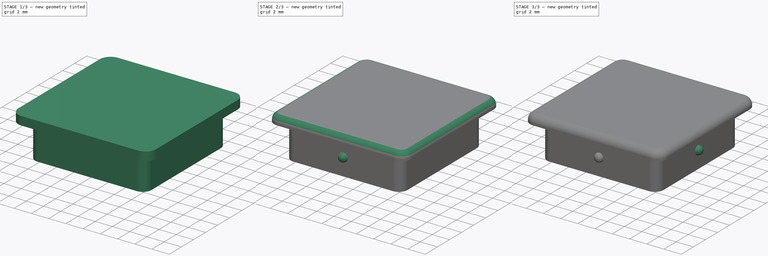
[diagram: build sequence overview — one tinted view per stage of 3, left to right]
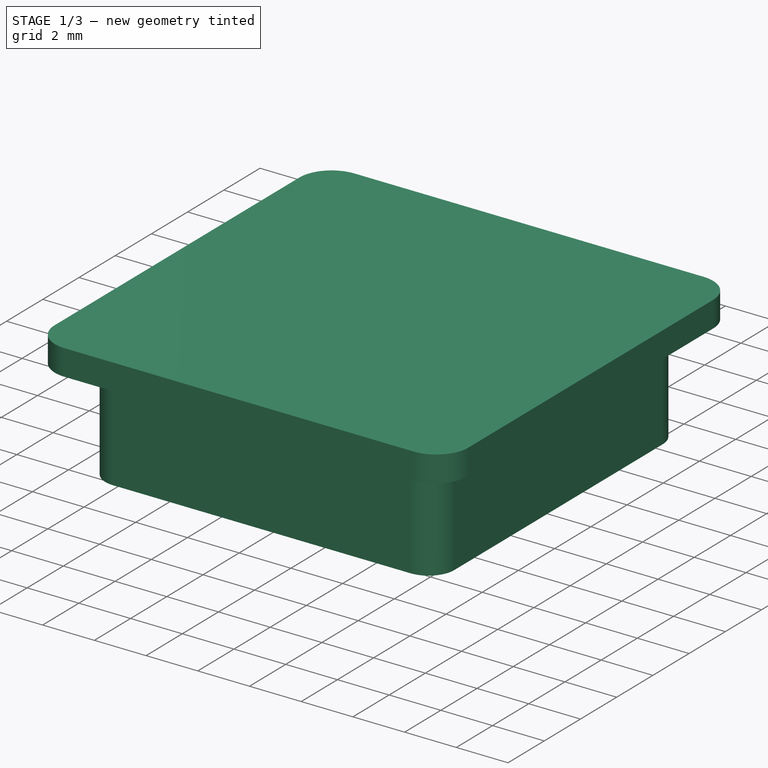
[diagram: stage 1 of 3 — iso view after this stage's code; geometry added in this stage tinted green]
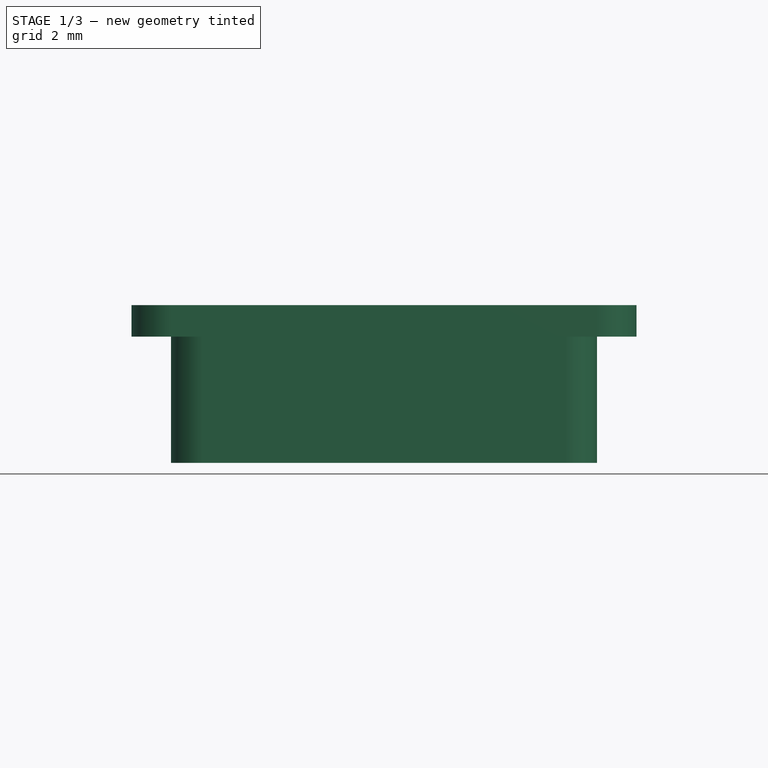
[diagram: stage 1 of 3 — front view after this stage's code; geometry added in this stage tinted green]
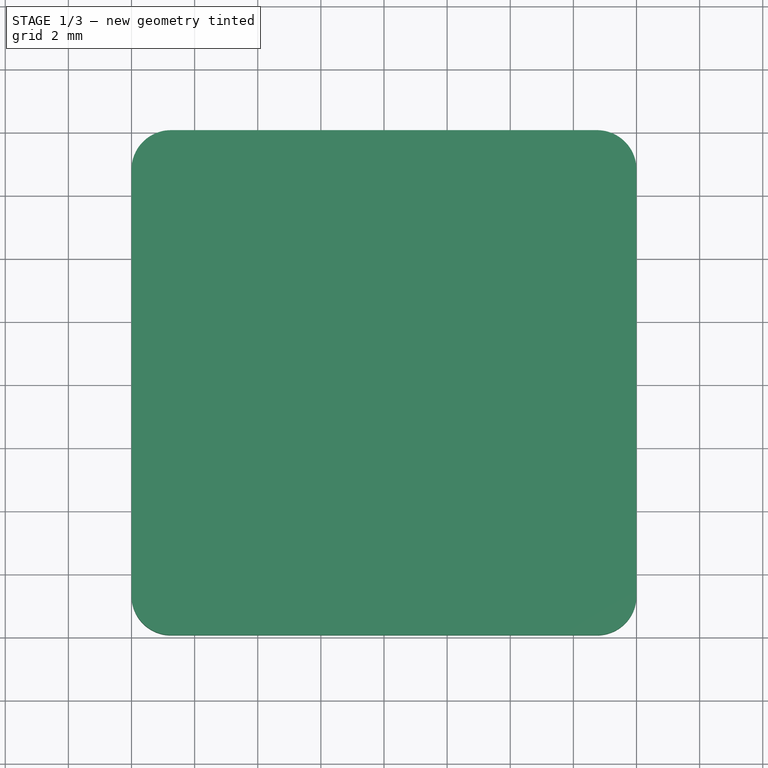
[diagram: stage 1 of 3 — top view after this stage's code; geometry added in this stage tinted green]
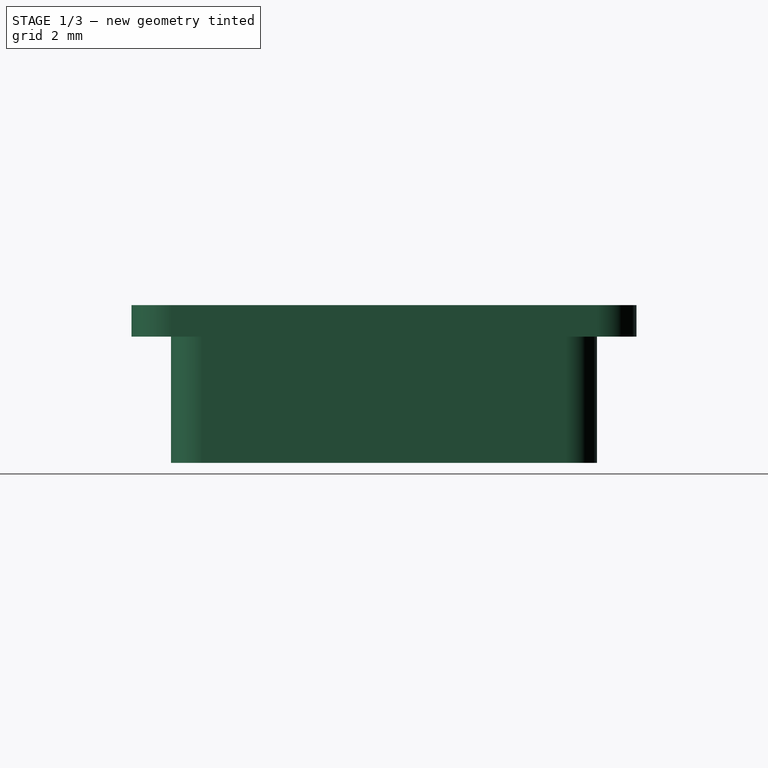
[diagram: stage 1 of 3 — right view after this stage's code; geometry added in this stage tinted green]
FCSTD DOCUMENT  (FreeCAD 1.0R39109 (Git))
Label: mechanical-keyboard-mount-hole-plug
License: All rights reserved
LicenseURL: https://en.wikipedia.org/wiki/All_rights_reserved
objects: Sketcher::SketchObject×4, PartDesign::Pad×2, App::VarSet×1, PartDesign::Fillet×1, PartDesign::AdditiveSphere×1, PartDesign::PolarPattern×1, PartDesign::Pocket×1, PartDesign::Body×1
note: 26 computed .brp shape members not serialized (recipe doc carries the construction recipe); baked Part::Feature solids carry a one-line shape summary decoded from their .brp

FEATURE [App::VarSet] VarSet
  Base_CapCornerRadius = 1.25
  Base_CapHeight = 1
  Base_FilletRadius = 0.8
  Base_MaterialThickness = 1.5
  Base_MountHoleCornerRadius = 1
  Base_Overlap = 2
  Base_PegHeight = 4
  Base_PimpleRadius = 0.5
  Base_Tolerance = 0.5
  MountHoleWidth = 14
FEATURE [Sketcher::SketchObject] Sketch
  ArcFitTolerance = 1e-06
  AttachmentSupport = -> [XY_Plane]
  FullyConstrained = true
  MakeInternals = false
  MapMode = 5
  expr: Constraints[10] = VarSet.MountHoleWidth - VarSet.Base_Tolerance
  expr: Constraints[33] = VarSet.Base_MountHoleCornerRadius
  sketch-geometry (15):
    g0: LineSegment [constr] StartX=-6.75 StartY=6.75 StartZ=0 EndX=-6.75 EndY=-6.75 EndZ=0
    g1: LineSegment [constr] StartX=-6.75 StartY=-6.75 StartZ=0 EndX=6.75 EndY=-6.75 EndZ=0
    g2: LineSegment [constr] StartX=6.75 StartY=-6.75 StartZ=0 EndX=6.75 EndY=6.75 EndZ=0
    g3: LineSegment [constr] StartX=6.75 StartY=6.75 StartZ=0 EndX=-6.75 EndY=6.75 EndZ=0
    g4: GeomPoint [constr] X=0 Y=0 Z=0
    g5: LineSegment StartX=5.75 StartY=6.75 StartZ=0 EndX=-5.75 EndY=6.75 EndZ=0
    g6: LineSegment StartX=-6.75 StartY=5.75 StartZ=0 EndX=-6.75 EndY=-5.75 EndZ=0
    g7: LineSegment StartX=-5.75 StartY=-6.75 StartZ=0 EndX=5.75 EndY=-6.75 EndZ=0
    g8: LineSegment StartX=6.75 StartY=-5.75 StartZ=0 EndX=6.75 EndY=5.75 EndZ=0
    g9: ArcOfCircle CenterX=5.75 CenterY=5.75 CenterZ=0 NormalX=0 NormalY=0 NormalZ=1 AngleXU=0 Radius=1 StartAngle=6.31e-14 EndAngle=1.5708
    g10: ArcOfCircle CenterX=-5.75 CenterY=5.75 CenterZ=0 NormalX=0 NormalY=0 NormalZ=1 AngleXU=0 Radius=1 StartAngle=1.5708 EndAngle=3.14159
    g11: ArcOfCircle CenterX=-5.75 CenterY=-5.75 CenterZ=0 NormalX=0 NormalY=0 NormalZ=1 AngleXU=0 Radius=1 StartAngle=3.14159 EndAngle=4.71239
    g12: ArcOfCircle CenterX=5.75 CenterY=-5.75 CenterZ=0 NormalX=0 NormalY=0 NormalZ=1 AngleXU=0 Radius=1 StartAngle=4.71239 EndAngle=6.28319
    g13: GeomPoint [constr] X=6.75 Y=6.75 Z=0
    g14: GeomPoint [constr] X=-6.75 Y=-6.75 Z=0
  constraints (34):
    c: Coincident(g0,g1)
    c: Coincident(g1,g2)
    c: Coincident(g2,g3)
    c: Coincident(g3,g0)
    c: Vertical(g0)
    c: Vertical(g2)
    c: Horizontal(g1)
    c: Horizontal(g3)
    c: Symmetric(g2,g0,g4)
    c: Coincident(g4,g-1)
    c: DistanceX(g3,g3) = 13.5
    c: Equal(g2,g3)
    c: Tangent(g5,g9) = -1.5708
    c: Tangent(g5,g10) = -1.5708
    c: Tangent(g6,g10) = -1.5708
    c: Tangent(g6,g11) = -1.5708
    c: Tangent(g7,g11) = -1.5708
    c: Tangent(g7,g12) = -1.5708
    c: Tangent(g8,g12) = -1.5708
    c: Tangent(g8,g9) = -1.5708
    c: Horizontal(g5)
    c: Horizontal(g7)
    c: Vertical(g6)
    c: Vertical(g8)
    c: Equal(g9,g10)
    c: Equal(g10,g11)
    c: Equal(g11,g12)
    c: PointOnObject(g13,g5)
    c: PointOnObject(g13,g8)
    c: PointOnObject(g14,g6)
    c: PointOnObject(g14,g7)
    c: Coincident(g13,g2)
    c: Coincident(g14,g0)
    c: Radius(g10) = 1
FEATURE [PartDesign::Pad] Pad  label="Peg Pad"
  Direction = (0,0,1)
  Length = 4
  Length2 = 10
  Profile = -> Sketch
  ReferenceAxis = -> Sketch [N_Axis]
  Refine = true
  Suppressed = false
  Type = 0
  expr: Length = VarSet.Base_PegHeight
FEATURE [Sketcher::SketchObject] Sketch001
  ArcFitTolerance = 1e-06
  AttachmentSupport = -> [Pad]
  FullyConstrained = true
  MakeInternals = false
  MapMode = 5
  Placement = pos=(0,0,4) rot=(0,0,1;0rad)
  expr: Constraints[10] = VarSet.MountHoleWidth + VarSet.Base_Overlap
  expr: Constraints[33] = VarSet.Base_CapCornerRadius
  sketch-geometry (15):
    g0: LineSegment [constr] StartX=-8 StartY=8 StartZ=0 EndX=-8 EndY=-8 EndZ=0
    g1: LineSegment [constr] StartX=-8 StartY=-8 StartZ=0 EndX=8 EndY=-8 EndZ=0
    g2: LineSegment [constr] StartX=8 StartY=-8 StartZ=0 EndX=8 EndY=8 EndZ=0
    g3: LineSegment [constr] StartX=8 StartY=8 StartZ=0 EndX=-8 EndY=8 EndZ=0
    g4: GeomPoint [constr] X=0 Y=0 Z=0
    g5: LineSegment StartX=6.75 StartY=8 StartZ=0 EndX=-6.75 EndY=8 EndZ=0
    g6: LineSegment StartX=-8 StartY=6.75 StartZ=0 EndX=-8 EndY=-6.75 EndZ=0
    g7: LineSegment StartX=-6.75 StartY=-8 StartZ=0 EndX=6.75 EndY=-8 EndZ=0
    g8: LineSegment StartX=8 StartY=-6.75 StartZ=0 EndX=8 EndY=6.75 EndZ=0
    g9: ArcOfCircle CenterX=6.75 CenterY=6.75 CenterZ=0 NormalX=0 NormalY=0 NormalZ=1 AngleXU=0 Radius=1.25 StartAngle=0 EndAngle=1.5708
    g10: ArcOfCircle CenterX=-6.75 CenterY=6.75 CenterZ=0 NormalX=0 NormalY=0 NormalZ=1 AngleXU=0 Radius=1.25 StartAngle=1.5708 EndAngle=3.14159
    g11: ArcOfCircle CenterX=-6.75 CenterY=-6.75 CenterZ=0 NormalX=0 NormalY=0 NormalZ=1 AngleXU=0 Radius=1.25 StartAngle=3.14159 EndAngle=4.71239
    g12: ArcOfCircle CenterX=6.75 CenterY=-6.75 CenterZ=0 NormalX=0 NormalY=0 NormalZ=1 AngleXU=0 Radius=1.25 StartAngle=4.71239 EndAngle=6.28319
    g13: GeomPoint [constr] X=8 Y=8 Z=0
    g14: GeomPoint [constr] X=-8 Y=-8 Z=0
  constraints (34):
    c: Coincident(g0,g1)
    c: Coincident(g1,g2)
    c: Coincident(g2,g3)
    c: Coincident(g3,g0)
    c: Vertical(g0)
    c: Vertical(g2)
    c: Horizontal(g1)
    c: Horizontal(g3)
    c: Symmetric(g2,g0,g4)
    c: Coincident(g4,g-1)
    c: DistanceX(g3,g3) = 16
    c: Equal(g3,g2)
    c: Tangent(g5,g9) = -1.5708
    c: Tangent(g5,g10) = -1.5708
    c: Tangent(g6,g10) = -1.5708
    c: Tangent(g6,g11) = -1.5708
    c: Tangent(g7,g11) = -1.5708
    c: Tangent(g7,g12) = -1.5708
    c: Tangent(g8,g12) = -1.5708
    c: Tangent(g8,g9) = -1.5708
    c: Horizontal(g5)
    c: Horizontal(g7)
    c: Vertical(g6)
    c: Vertical(g8)
    c: Equal(g9,g10)
    c: Equal(g10,g11)
    c: Equal(g11,g12)
    c: PointOnObject(g13,g5)
    c: PointOnObject(g13,g8)
    c: PointOnObject(g14,g6)
    c: PointOnObject(g14,g7)
    c: Coincident(g13,g2)
    c: Coincident(g14,g0)
    c: Radius(g11) = 1.25
FEATURE [PartDesign::Pad] Pad001  label="CapPad"
  BaseFeature = -> Pad
  Direction = (0,0,1)
  Length = 1
  Length2 = 10
  Profile = -> Sketch001
  ReferenceAxis = -> Sketch001 [N_Axis]
  Refine = true
  Suppressed = false
  Type = 0
  expr: Length = VarSet.Base_CapHeight
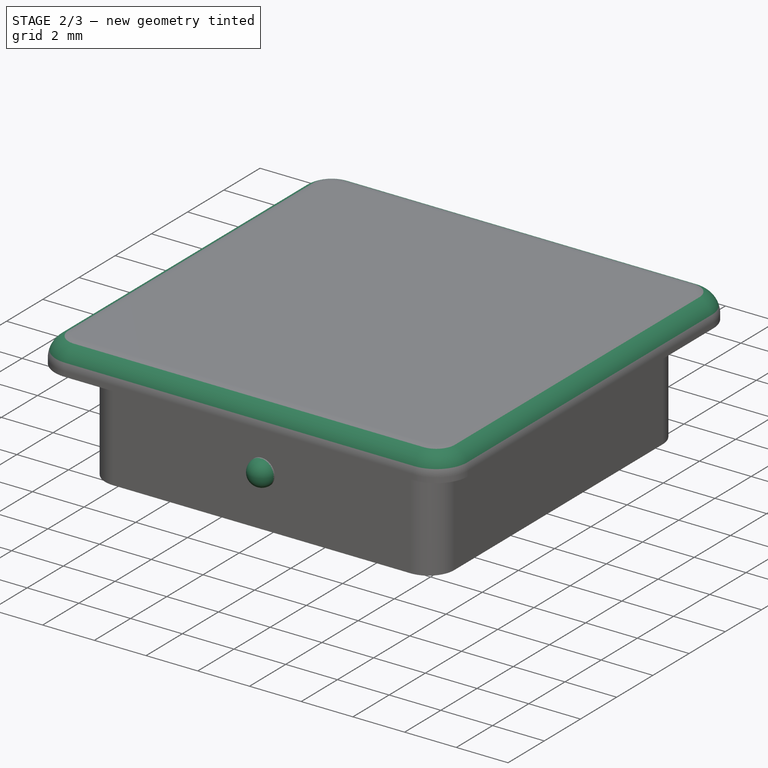
[diagram: stage 2 of 3 — iso view after this stage's code; geometry added in this stage tinted green]
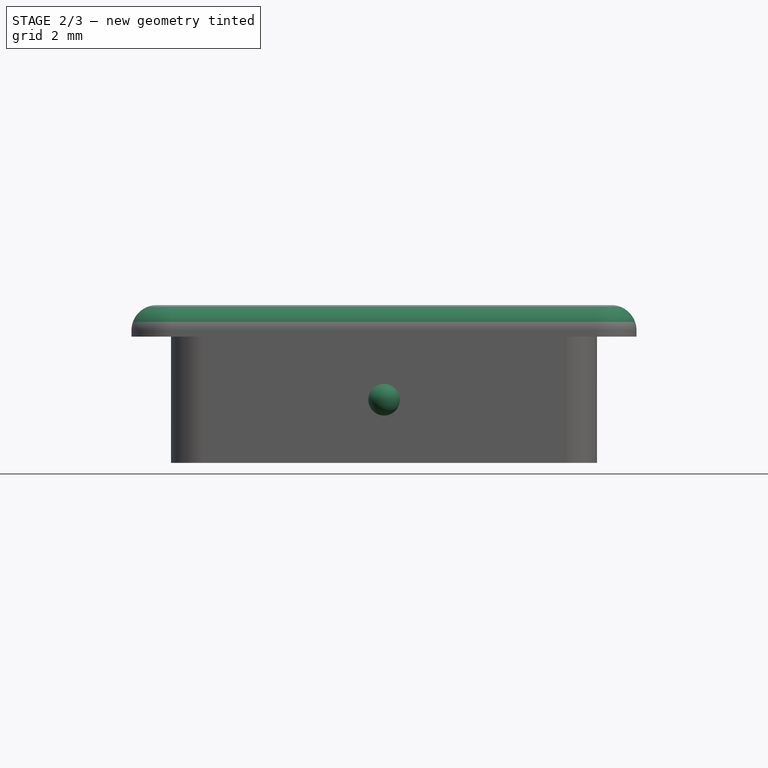
[diagram: stage 2 of 3 — front view after this stage's code; geometry added in this stage tinted green]
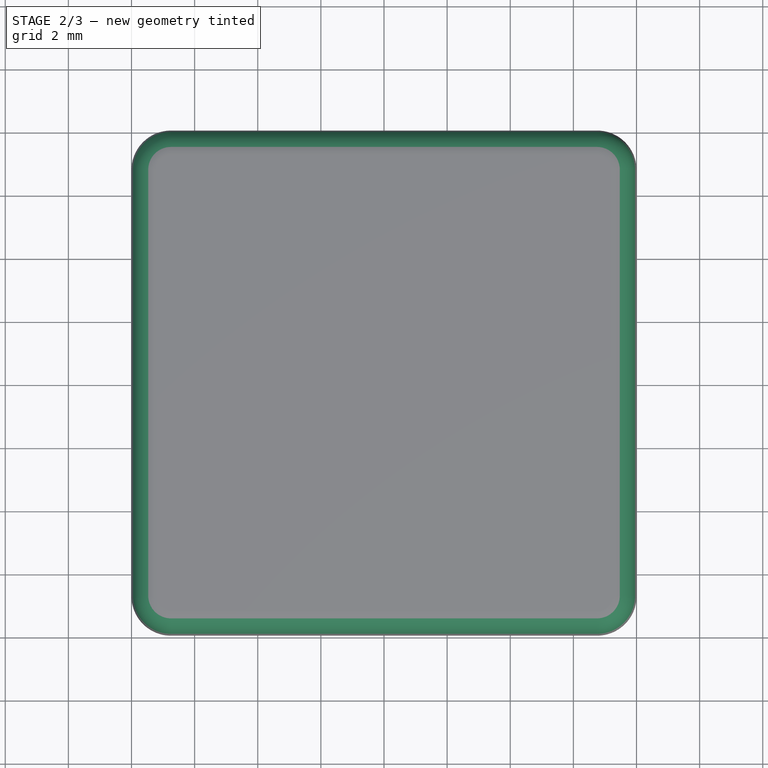
[diagram: stage 2 of 3 — top view after this stage's code; geometry added in this stage tinted green]
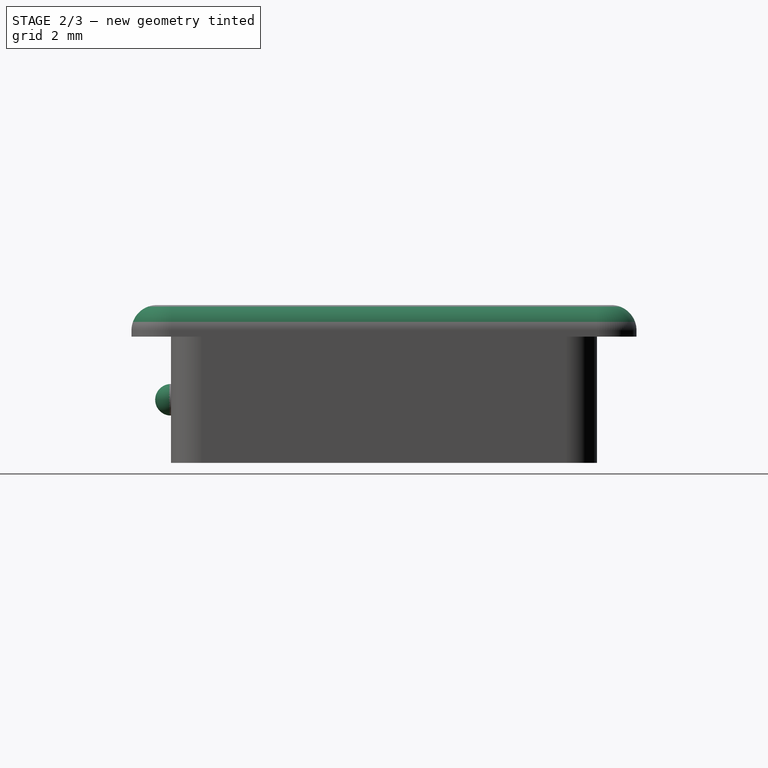
[diagram: stage 2 of 3 — right view after this stage's code; geometry added in this stage tinted green]
FEATURE [PartDesign::Fillet] Fillet
  Base = -> Pad001 [Edge48,Edge47,Edge43,Edge39,Edge35,Edge37,Edge41,Edge45]
  BaseFeature = -> Pad001
  Radius = 0.8
  Refine = true
  SupportTransform = false
  Suppressed = false
  UseAllEdges = false
  expr: Radius = VarSet.Base_FilletRadius
FEATURE [Sketcher::SketchObject] Sketch003
  ArcFitTolerance = 1e-06
  AttachmentSupport = -> [Fillet]
  ExternalGeometry = -> [Fillet]
  FullyConstrained = true
  MakeInternals = false
  MapMode = 5
  Placement = pos=(0,-6.75,0) rot=(1,0,0;1.5708rad)
  expr: Constraints[1] = VarSet.Base_MaterialThickness + VarSet.Base_Tolerance
  sketch-geometry (1):
    g0: GeomPoint X=0 Y=2 Z=0
  constraints (2):
    c: PointOnObject(g0,g-2)
    c: Distance(g0,g-3) = 2
FEATURE [PartDesign::AdditiveSphere] Sphere
  Angle1 = -90
  Angle2 = 90
  Angle3 = 360
  AttacherType = Attacher::AttachEngine3D
  AttachmentSupport = -> [Sketch003]
  BaseFeature = -> Fillet
  MapMode = 1
  Placement = pos=(0,-6.75,2) rot=(0,0,1;0rad)
  Radius = 0.5
  Refine = true
  Suppressed = false
  expr: Radius = VarSet.Base_PimpleRadius
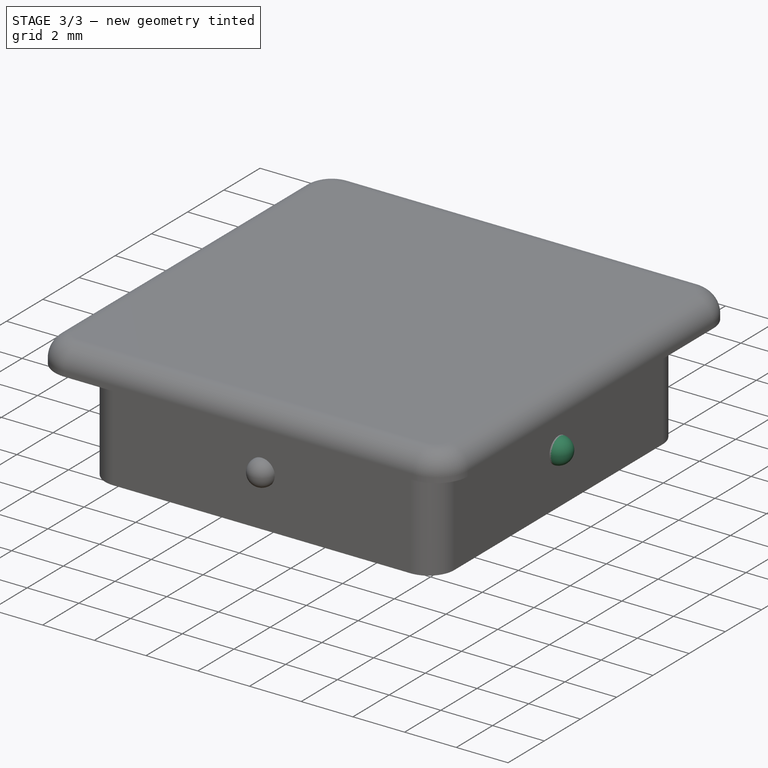
[diagram: stage 3 of 3 — iso view after this stage's code; geometry added in this stage tinted green]
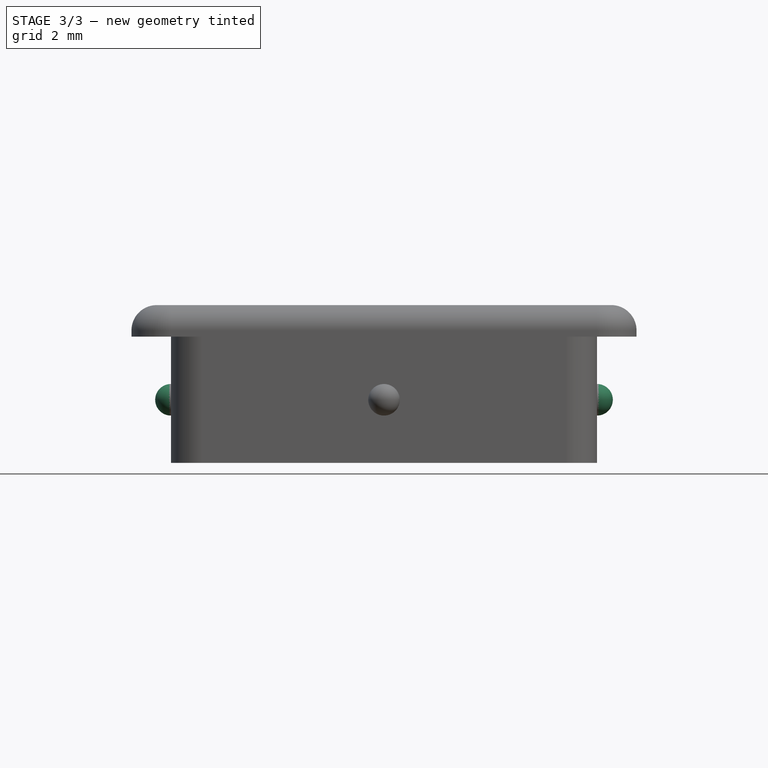
[diagram: stage 3 of 3 — front view after this stage's code; geometry added in this stage tinted green]
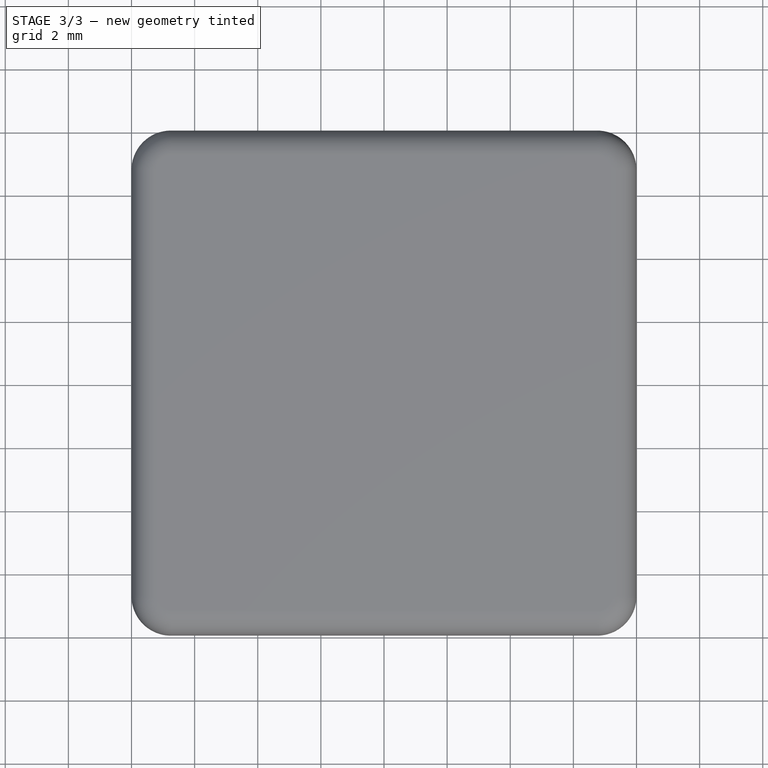
[diagram: stage 3 of 3 — top view after this stage's code; geometry added in this stage tinted green]
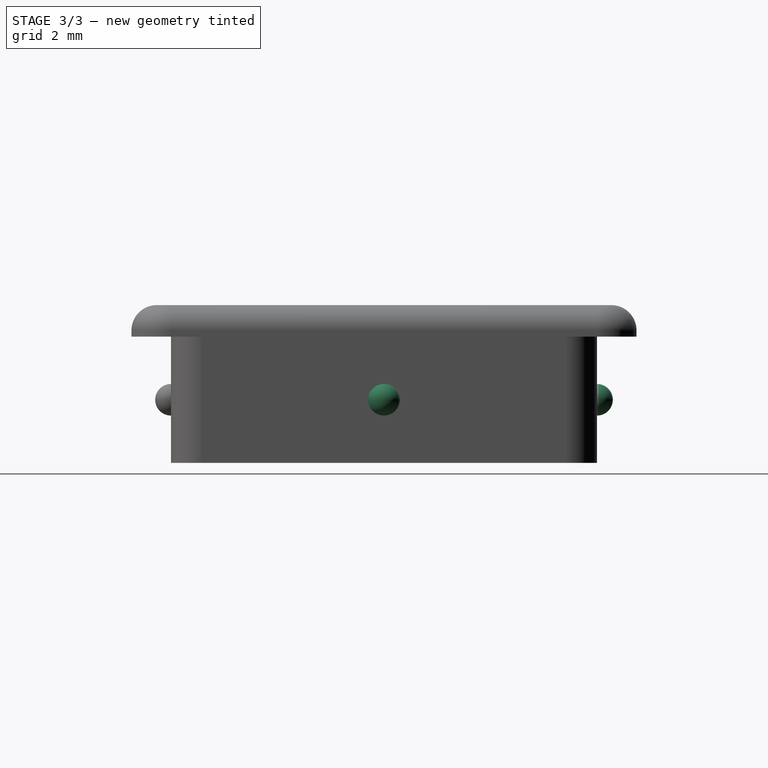
[diagram: stage 3 of 3 — right view after this stage's code; geometry added in this stage tinted green]
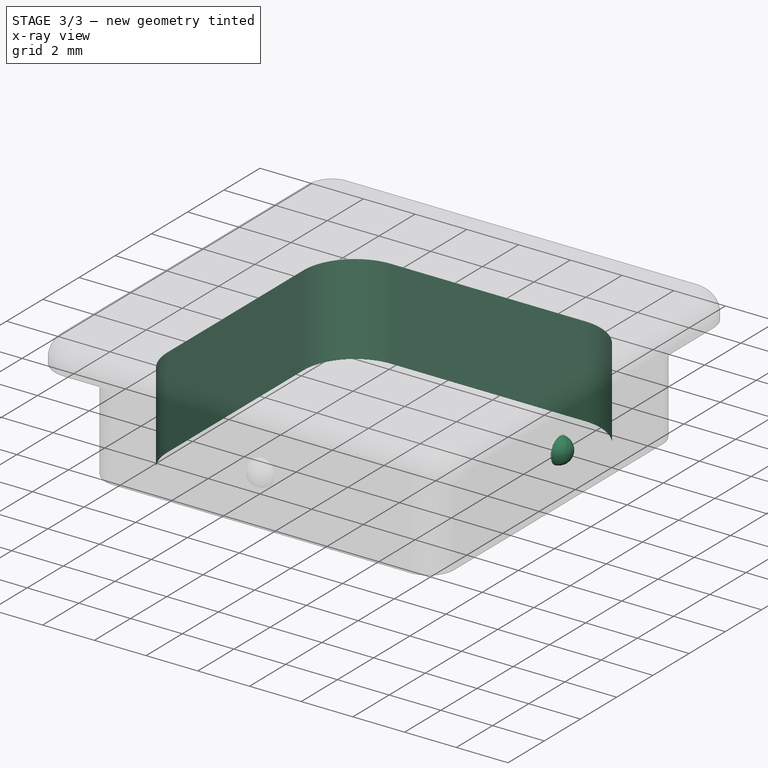
[diagram: stage 3 of 3 — x-ray composite at the iso view; earlier geometry ghosted, this stage's added geometry solid]
FEATURE [PartDesign::PolarPattern] PolarPattern
  Angle = 360
  Axis = -> Z_Axis
  BaseFeature = -> Sphere
  Mode = 0
  Occurrences = 4
  Offset = 120
  Originals = -> [Sphere]
  Placement = pos=(0,-6.75,2) rot=(0,0,1;0rad)
  Refine = true
  Suppressed = false
  TransformMode = 0
FEATURE [Sketcher::SketchObject] Sketch004
  ArcFitTolerance = 1e-06
  AttachmentSupport = -> [PolarPattern]
  ExternalGeometry = -> [PolarPattern]
  FullyConstrained = true
  MakeInternals = false
  MapMode = 5
  Placement = pos=(0,-6.75,0) rot=(1,0,0;3.14159rad)
  expr: Constraints[21] = VarSet.Base_MountHoleCornerRadius * 2
  sketch-geometry (10):
    g0: LineSegment StartX=-5.75 StartY=-3 StartZ=0 EndX=-5.75 EndY=-10.5 EndZ=0
    g1: LineSegment StartX=-3.75 StartY=-12.5 StartZ=0 EndX=3.75 EndY=-12.5 EndZ=0
    g2: LineSegment StartX=5.75 StartY=-10.5 StartZ=0 EndX=5.75 EndY=-3 EndZ=0
    g3: LineSegment StartX=3.75 StartY=-1 StartZ=0 EndX=-3.75 EndY=-1 EndZ=0
    g4: ArcOfCircle CenterX=-3.75 CenterY=-3 CenterZ=0 NormalX=0 NormalY=0 NormalZ=1 AngleXU=0 Radius=2 StartAngle=1.5708 EndAngle=3.14159
    g5: ArcOfCircle CenterX=-3.75 CenterY=-10.5 CenterZ=0 NormalX=0 NormalY=0 NormalZ=1 AngleXU=0 Radius=2 StartAngle=3.14159 EndAngle=4.71239
    g6: ArcOfCircle CenterX=3.75 CenterY=-10.5 CenterZ=0 NormalX=0 NormalY=0 NormalZ=1 AngleXU=0 Radius=2 StartAngle=4.71239 EndAngle=6.28319
    g7: ArcOfCircle CenterX=3.75 CenterY=-3 CenterZ=0 NormalX=0 NormalY=0 NormalZ=1 AngleXU=0 Radius=2 StartAngle=4e-16 EndAngle=1.5708
    g8: GeomPoint [constr] X=-5.75 Y=-1 Z=0
    g9: GeomPoint [constr] X=5.75 Y=-12.5 Z=0
  constraints (22):
    c: Tangent(g0,g4) = -1.5708
    c: Tangent(g0,g5) = -1.5708
    c: Tangent(g1,g5) = -1.5708
    c: Tangent(g1,g6) = -1.5708
    c: Tangent(g2,g6) = -1.5708
    c: Tangent(g2,g7) = -1.5708
    c: Tangent(g3,g7) = -1.5708
    c: Tangent(g3,g4) = -1.5708
    c: Vertical(g0)
    c: Vertical(g2)
    c: Horizontal(g1)
    c: Horizontal(g3)
    c: Equal(g4,g5)
    c: Equal(g5,g6)
    c: Equal(g6,g7)
    c: PointOnObject(g8,g0)
    c: PointOnObject(g8,g3)
    c: PointOnObject(g9,g1)
    c: PointOnObject(g9,g2)
    c: Coincident(g8,g-4)
    c: Coincident(g9,g-8)
    c: Radius(g4) = 2
FEATURE [PartDesign::Pocket] Pocket
  BaseFeature = -> PolarPattern
  Direction = (0,0,1)
  Length = 3.5
  Length2 = 5
  Placement = pos=(0,-6.75,2) rot=(0,0,1;0rad)
  Profile = -> Sketch004
  ReferenceAxis = -> Sketch004 [N_Axis]
  Refine = true
  Suppressed = false
  Type = 0
  expr: Length = VarSet.Base_PegHeight - VarSet.Base_Tolerance
FEATURE [PartDesign::Body] Body
  AllowCompound = false
  Group = -> [Sketch,Pad,Sketch001,Pad001,Fillet,Sketch003,Sphere,PolarPattern,Sketch004,Pocket]
  Origin = -> Origin
  Tip = -> Pocket
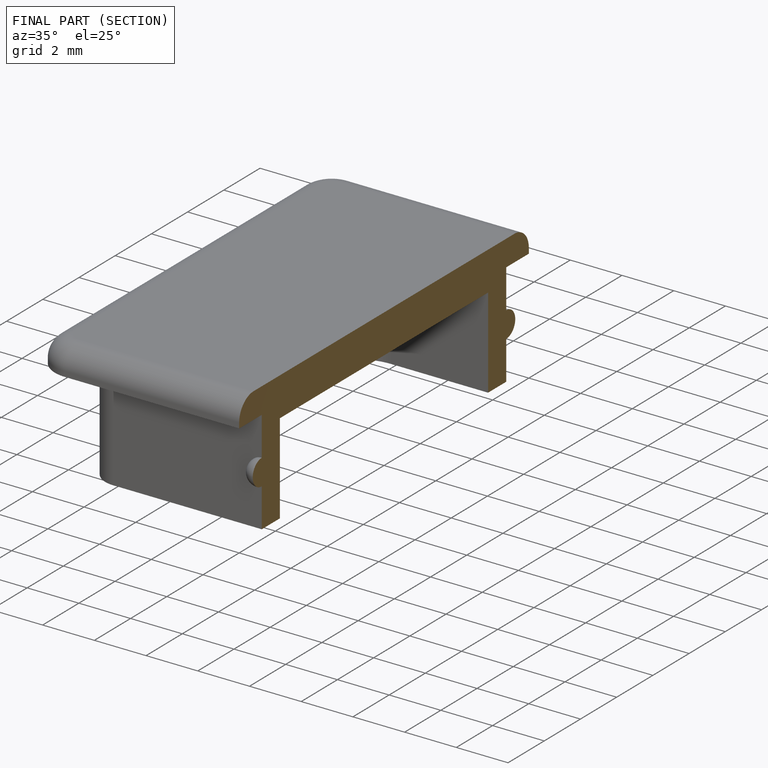
[diagram: finished part — half-section view (interior)]
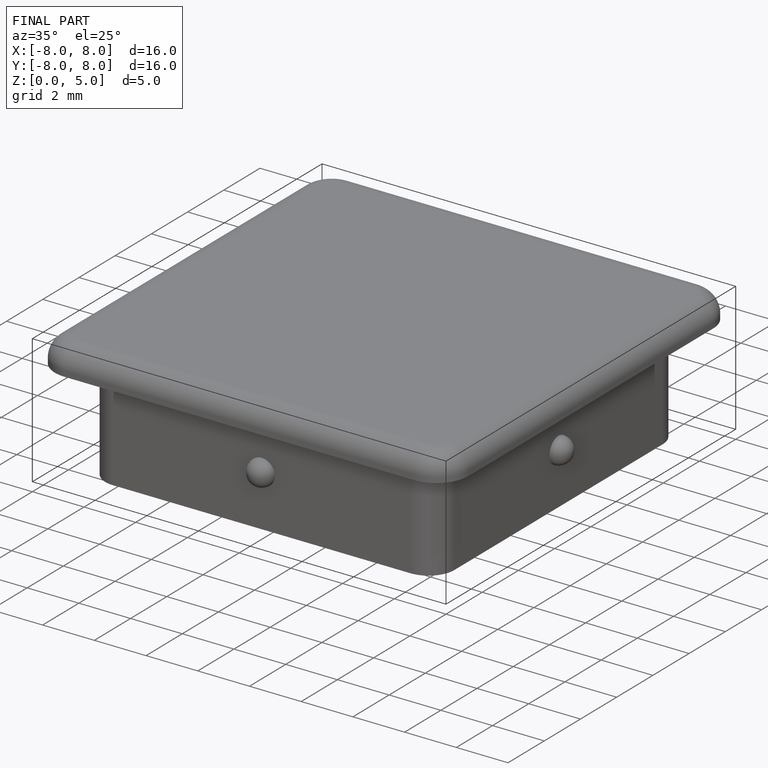
[diagram: finished part — iso view with bounding-box wireframe]
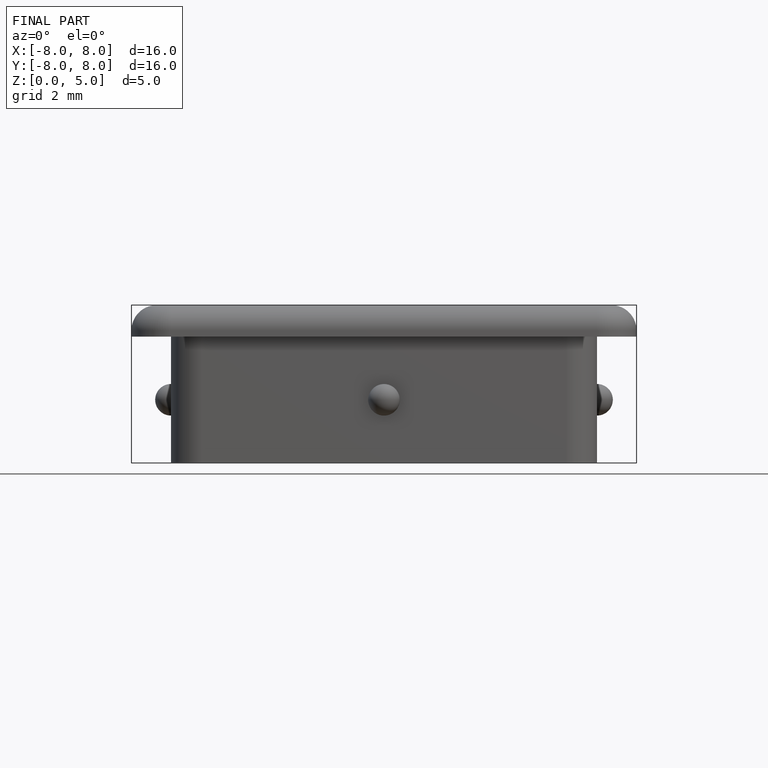
[diagram: finished part — front view with bounding-box wireframe]
